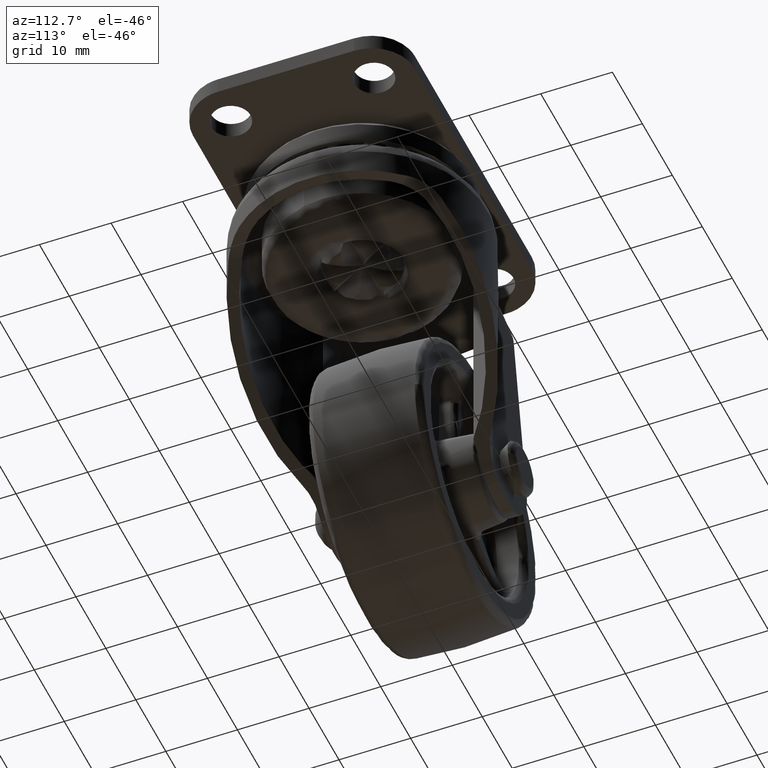
[diagram: clean part render]
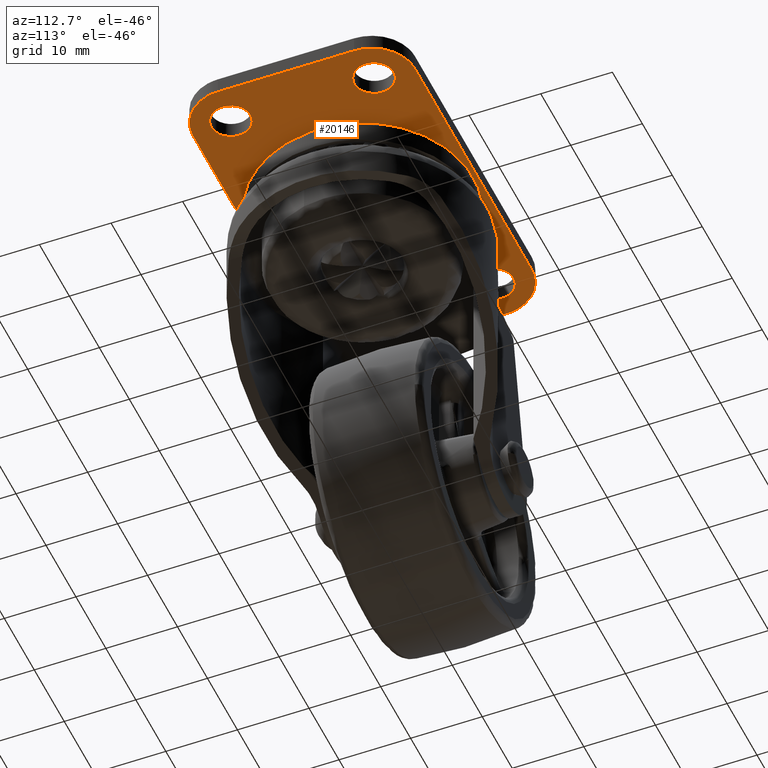
[diagram: same view with one face highlighted and labeled with its STEP entity id]
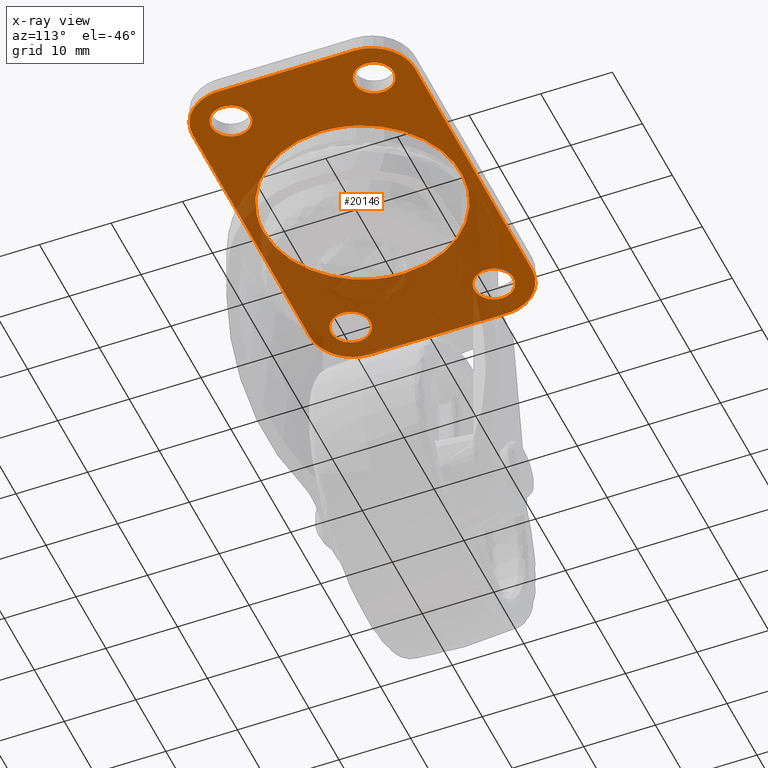
[diagram: x-ray of the same camera — body ghosted, the highlighted face saturated]
A machine part, auxiliary view. The second image highlights one B-rep face of the part: STEP entity #20146.
The next image is the same camera in x-ray: the body ghosted, the highlighted face saturated — about 45% of this face is hidden behind the body in this view.
In plain terms, the highlighted face is a freeform B-spline surface patch.
Its self-contained STEP definition (entity closure, byte-faithful):
#16267=CARTESIAN_POINT('',(-2.750000000000001,9.999999999999890,35.700001000000050));
#16268=VERTEX_POINT('',#16267);
#16269=CARTESIAN_POINT('',(-0.215762513361865,7.258477332242467,35.700001000000050));
#16270=VERTEX_POINT('',#16269);
#16271=CARTESIAN_POINT('',(-2.750000000000001,9.999999999999890,35.700001000000050));
#16272=CARTESIAN_POINT('',(-2.750000000000001,7.457926148144983,35.700001000000057));
#16273=CARTESIAN_POINT('',(-0.215762513361865,7.258477332242467,35.700001000000050));
#16281=(BOUNDED_CURVE()B_SPLINE_CURVE(2,(#16271,#16272,#16273),.UNSPECIFIED.,.F.,.U.)B_SPLINE_CURVE_WITH_KNOTS((3,3),(0.0,0.236331300618974),.UNSPECIFIED.)CURVE()GEOMETRIC_REPRESENTATION_ITEM()RATIONAL_B_SPLINE_CURVE((1.0,0.723120658621356,0.969723356143031))REPRESENTATION_ITEM(''));
#16282=EDGE_CURVE('',#16268,#16270,#16281,.T.);
#16284=CARTESIAN_POINT('',(0.215762513361863,12.741522667757311,35.700001000000043));
#16285=VERTEX_POINT('',#16284);
#16286=CARTESIAN_POINT('',(0.215762513361862,12.741522667757311,35.700001000000050));
#16287=CARTESIAN_POINT('',(0.108047794381891,12.749999999999892,35.700001000000050));
#16288=CARTESIAN_POINT('',(-1.224606E-015,12.749999999999890,35.700001000000050));
#16289=CARTESIAN_POINT('',(-2.750000000000002,12.749999999999892,35.700001000000043));
#16290=CARTESIAN_POINT('',(-2.750000000000001,9.999999999999890,35.700001000000050));
#16298=(BOUNDED_CURVE()B_SPLINE_CURVE(2,(#16286,#16287,#16288,#16289,#16290),.UNSPECIFIED.,.F.,.U.)B_SPLINE_CURVE_WITH_KNOTS((3,2,3),(0.736331300618974,0.750000000000000,1.0),.UNSPECIFIED.)CURVE()GEOMETRIC_REPRESENTATION_ITEM()RATIONAL_B_SPLINE_CURVE((0.969723356143031,0.983986122565192,1.0,0.707106781186548,1.0))REPRESENTATION_ITEM(''));
#16299=EDGE_CURVE('',#16285,#16268,#16298,.T.);
#16366=CARTESIAN_POINT('',(2.749999999999999,9.999999999999890,35.700001000000050));
#16367=VERTEX_POINT('',#16366);
#16368=CARTESIAN_POINT('',(-0.215762513361865,7.258477332242467,35.700001000000050));
#16369=CARTESIAN_POINT('',(-0.108047794381894,7.249999999999890,35.700001000000050));
#16370=CARTESIAN_POINT('',(-1.224606E-015,7.249999999999889,35.700001000000050));
#16371=CARTESIAN_POINT('',(2.749999999999999,7.249999999999888,35.700001000000043));
#16372=CARTESIAN_POINT('',(2.749999999999999,9.999999999999890,35.700001000000050));
#16380=(BOUNDED_CURVE()B_SPLINE_CURVE(2,(#16368,#16369,#16370,#16371,#16372),.UNSPECIFIED.,.F.,.U.)B_SPLINE_CURVE_WITH_KNOTS((3,2,3),(0.236331300618974,0.250000000000000,0.500000000000000),.UNSPECIFIED.)CURVE()GEOMETRIC_REPRESENTATION_ITEM()RATIONAL_B_SPLINE_CURVE((0.969723356143031,0.983986122565192,1.0,0.707106781186548,1.0))REPRESENTATION_ITEM(''));
#16381=EDGE_CURVE('',#16270,#16367,#16380,.T.);
#16415=CARTESIAN_POINT('',(2.749999999999999,9.999999999999890,35.700001000000050));
#16416=CARTESIAN_POINT('',(2.749999999999999,12.542073851854806,35.700001000000050));
#16417=CARTESIAN_POINT('',(0.215762513361862,12.741522667757314,35.700001000000050));
#16425=(BOUNDED_CURVE()B_SPLINE_CURVE(2,(#16415,#16416,#16417),.UNSPECIFIED.,.F.,.U.)B_SPLINE_CURVE_WITH_KNOTS((3,3),(0.500000000000000,0.736331300618975),.UNSPECIFIED.)CURVE()GEOMETRIC_REPRESENTATION_ITEM()RATIONAL_B_SPLINE_CURVE((1.0,0.723120658621355,0.969723356143033))REPRESENTATION_ITEM(''));
#16426=EDGE_CURVE('',#16367,#16285,#16425,.T.);
#16449=CARTESIAN_POINT('',(37.250000000000000,9.999999999999890,35.700001000000050));
#16450=VERTEX_POINT('',#16449);
#16451=CARTESIAN_POINT('',(39.784237486638133,7.258477332242467,35.700001000000043));
#16452=VERTEX_POINT('',#16451);
#16453=CARTESIAN_POINT('',(37.250000000000000,9.999999999999890,35.700001000000050));
#16454=CARTESIAN_POINT('',(37.249999999999993,7.457926148144983,35.700001000000043));
#16455=CARTESIAN_POINT('',(39.784237486638141,7.258477332242467,35.700001000000043));
#16463=(BOUNDED_CURVE()B_SPLINE_CURVE(2,(#16453,#16454,#16455),.UNSPECIFIED.,.F.,.U.)B_SPLINE_CURVE_WITH_KNOTS((3,3),(0.0,0.236331300618974),.UNSPECIFIED.)CURVE()GEOMETRIC_REPRESENTATION_ITEM()RATIONAL_B_SPLINE_CURVE((1.0,0.723120658621356,0.969723356143032))REPRESENTATION_ITEM(''));
#16464=EDGE_CURVE('',#16450,#16452,#16463,.T.);
#16466=CARTESIAN_POINT('',(40.215762513361867,12.741522667757311,35.700001000000043));
#16467=VERTEX_POINT('',#16466);
#16468=CARTESIAN_POINT('',(40.215762513361874,12.741522667757316,35.700001000000043));
#16469=CARTESIAN_POINT('',(40.108047794381889,12.749999999999886,35.700001000000064));
#16470=CARTESIAN_POINT('',(40.0,12.749999999999890,35.700001000000050));
#16471=CARTESIAN_POINT('',(37.250000000000000,12.749999999999892,35.700001000000043));
#16472=CARTESIAN_POINT('',(37.250000000000000,9.999999999999890,35.700001000000050));
#16480=(BOUNDED_CURVE()B_SPLINE_CURVE(2,(#16468,#16469,#16470,#16471,#16472),.UNSPECIFIED.,.F.,.U.)B_SPLINE_CURVE_WITH_KNOTS((3,2,3),(0.736331300618974,0.750000000000000,1.0),.UNSPECIFIED.)CURVE()GEOMETRIC_REPRESENTATION_ITEM()RATIONAL_B_SPLINE_CURVE((0.969723356143031,0.983986122565192,1.0,0.707106781186548,1.0))REPRESENTATION_ITEM(''));
#16481=EDGE_CURVE('',#16467,#16450,#16480,.T.);
#16548=CARTESIAN_POINT('',(42.750000000000000,9.999999999999890,35.700001000000050));
#16549=VERTEX_POINT('',#16548);
#16550=CARTESIAN_POINT('',(39.784237486638141,7.258477332242467,35.700001000000043));
#16551=CARTESIAN_POINT('',(39.891952205618118,7.249999999999890,35.700001000000050));
#16552=CARTESIAN_POINT('',(40.0,7.249999999999889,35.700001000000050));
#16553=CARTESIAN_POINT('',(42.750000000000000,7.249999999999888,35.700001000000043));
#16554=CARTESIAN_POINT('',(42.750000000000000,9.999999999999890,35.700001000000050));
#16562=(BOUNDED_CURVE()B_SPLINE_CURVE(2,(#16550,#16551,#16552,#16553,#16554),.UNSPECIFIED.,.F.,.U.)B_SPLINE_CURVE_WITH_KNOTS((3,2,3),(0.236331300618974,0.250000000000000,0.500000000000000),.UNSPECIFIED.)CURVE()GEOMETRIC_REPRESENTATION_ITEM()RATIONAL_B_SPLINE_CURVE((0.969723356143032,0.983986122565192,1.0,0.707106781186548,1.0))REPRESENTATION_ITEM(''));
#16563=EDGE_CURVE('',#16452,#16549,#16562,.T.);
#16597=CARTESIAN_POINT('',(42.750000000000000,9.999999999999890,35.700001000000050));
#16598=CARTESIAN_POINT('',(42.750000000000000,12.542073851854806,35.700001000000050));
#16599=CARTESIAN_POINT('',(40.215762513361867,12.741522667757314,35.700001000000050));
#16607=(BOUNDED_CURVE()B_SPLINE_CURVE(2,(#16597,#16598,#16599),.UNSPECIFIED.,.F.,.U.)B_SPLINE_CURVE_WITH_KNOTS((3,3),(0.500000000000000,0.736331300618975),.UNSPECIFIED.)CURVE()GEOMETRIC_REPRESENTATION_ITEM()RATIONAL_B_SPLINE_CURVE((1.0,0.723120658621355,0.969723356143033))REPRESENTATION_ITEM(''));
#16608=EDGE_CURVE('',#16549,#16467,#16607,.T.);
#16631=CARTESIAN_POINT('',(-2.749999999999999,-10.0,35.700001000000050));
#16632=VERTEX_POINT('',#16631);
#16633=CARTESIAN_POINT('',(-0.215762513361863,-12.741522667757421,35.700001000000050));
#16634=VERTEX_POINT('',#16633);
#16635=CARTESIAN_POINT('',(-2.749999999999999,-10.0,35.700001000000050));
#16636=CARTESIAN_POINT('',(-2.750000000000000,-12.542073851854907,35.700001000000057));
#16637=CARTESIAN_POINT('',(-0.215762513361863,-12.741522667757422,35.700001000000050));
#16645=(BOUNDED_CURVE()B_SPLINE_CURVE(2,(#16635,#16636,#16637),.UNSPECIFIED.,.F.,.U.)B_SPLINE_CURVE_WITH_KNOTS((3,3),(0.0,0.236331300618974),.UNSPECIFIED.)CURVE()GEOMETRIC_REPRESENTATION_ITEM()RATIONAL_B_SPLINE_CURVE((1.0,0.723120658621356,0.969723356143031))REPRESENTATION_ITEM(''));
#16646=EDGE_CURVE('',#16632,#16634,#16645,.T.);
#16648=CARTESIAN_POINT('',(0.215762513361865,-7.258477332242578,35.700001000000043));
#16649=VERTEX_POINT('',#16648);
#16650=CARTESIAN_POINT('',(0.215762513361865,-7.258477332242578,35.700001000000050));
#16651=CARTESIAN_POINT('',(0.108047794381894,-7.250000000000000,35.700001000000050));
#16652=CARTESIAN_POINT('',(1.224606E-015,-7.250000000000000,35.700001000000050));
#16653=CARTESIAN_POINT('',(-2.749999999999999,-7.250000000000000,35.700001000000043));
#16654=CARTESIAN_POINT('',(-2.749999999999999,-10.0,35.700001000000050));
#16662=(BOUNDED_CURVE()B_SPLINE_CURVE(2,(#16650,#16651,#16652,#16653,#16654),.UNSPECIFIED.,.F.,.U.)B_SPLINE_CURVE_WITH_KNOTS((3,2,3),(0.736331300618974,0.750000000000000,1.0),.UNSPECIFIED.)CURVE()GEOMETRIC_REPRESENTATION_ITEM()RATIONAL_B_SPLINE_CURVE((0.969723356143031,0.983986122565192,1.0,0.707106781186548,1.0))REPRESENTATION_ITEM(''));
#16663=EDGE_CURVE('',#16649,#16632,#16662,.T.);
#16730=CARTESIAN_POINT('',(2.750000000000001,-10.0,35.700001000000050));
#16731=VERTEX_POINT('',#16730);
#16732=CARTESIAN_POINT('',(-0.215762513361863,-12.741522667757426,35.700001000000057));
#16733=CARTESIAN_POINT('',(-0.108047794381892,-12.750000000000005,35.700001000000057));
#16734=CARTESIAN_POINT('',(1.224606E-015,-12.750000000000000,35.700001000000050));
#16735=CARTESIAN_POINT('',(2.750000000000002,-12.750000000000002,35.700001000000043));
#16736=CARTESIAN_POINT('',(2.750000000000001,-10.0,35.700001000000050));
#16744=(BOUNDED_CURVE()B_SPLINE_CURVE(2,(#16732,#16733,#16734,#16735,#16736),.UNSPECIFIED.,.F.,.U.)B_SPLINE_CURVE_WITH_KNOTS((3,2,3),(0.236331300618974,0.250000000000000,0.500000000000000),.UNSPECIFIED.)CURVE()GEOMETRIC_REPRESENTATION_ITEM()RATIONAL_B_SPLINE_CURVE((0.969723356143031,0.983986122565192,1.0,0.707106781186548,1.0))REPRESENTATION_ITEM(''));
#16745=EDGE_CURVE('',#16634,#16731,#16744,.T.);
#16779=CARTESIAN_POINT('',(2.750000000000001,-10.0,35.700001000000050));
#16780=CARTESIAN_POINT('',(2.750000000000002,-7.457926148145087,35.700001000000050));
#16781=CARTESIAN_POINT('',(0.215762513361865,-7.258477332242578,35.700001000000050));
#16789=(BOUNDED_CURVE()B_SPLINE_CURVE(2,(#16779,#16780,#16781),.UNSPECIFIED.,.F.,.U.)B_SPLINE_CURVE_WITH_KNOTS((3,3),(0.500000000000000,0.736331300618975),.UNSPECIFIED.)CURVE()GEOMETRIC_REPRESENTATION_ITEM()RATIONAL_B_SPLINE_CURVE((1.0,0.723120658621355,0.969723356143033))REPRESENTATION_ITEM(''));
#16790=EDGE_CURVE('',#16731,#16649,#16789,.T.);
#16813=CARTESIAN_POINT('',(37.250000000000000,-10.0,35.700001000000050));
#16814=VERTEX_POINT('',#16813);
#16815=CARTESIAN_POINT('',(39.784237486638133,-12.741522667757421,35.700001000000043));
#16816=VERTEX_POINT('',#16815);
#16817=CARTESIAN_POINT('',(37.250000000000000,-10.0,35.700001000000050));
#16818=CARTESIAN_POINT('',(37.249999999999993,-12.542073851854907,35.700001000000057));
#16819=CARTESIAN_POINT('',(39.784237486638133,-12.741522667757422,35.700001000000050));
#16827=(BOUNDED_CURVE()B_SPLINE_CURVE(2,(#16817,#16818,#16819),.UNSPECIFIED.,.F.,.U.)B_SPLINE_CURVE_WITH_KNOTS((3,3),(0.0,0.236331300618974),.UNSPECIFIED.)CURVE()GEOMETRIC_REPRESENTATION_ITEM()RATIONAL_B_SPLINE_CURVE((1.0,0.723120658621356,0.969723356143031))REPRESENTATION_ITEM(''));
#16828=EDGE_CURVE('',#16814,#16816,#16827,.T.);
#16830=CARTESIAN_POINT('',(40.215762513361867,-7.258477332242579,35.700001000000043));
#16831=VERTEX_POINT('',#16830);
#16832=CARTESIAN_POINT('',(40.215762513361874,-7.258477332242579,35.700001000000043));
#16833=CARTESIAN_POINT('',(40.108047794381889,-7.250000000000000,35.700001000000064));
#16834=CARTESIAN_POINT('',(40.0,-7.250000000000000,35.700001000000050));
#16835=CARTESIAN_POINT('',(37.250000000000000,-7.250000000000000,35.700001000000043));
#16836=CARTESIAN_POINT('',(37.250000000000000,-10.0,35.700001000000050));
#16844=(BOUNDED_CURVE()B_SPLINE_CURVE(2,(#16832,#16833,#16834,#16835,#16836),.UNSPECIFIED.,.F.,.U.)B_SPLINE_CURVE_WITH_KNOTS((3,2,3),(0.736331300618974,0.750000000000000,1.0),.UNSPECIFIED.)CURVE()GEOMETRIC_REPRESENTATION_ITEM()RATIONAL_B_SPLINE_CURVE((0.969723356143031,0.983986122565192,1.0,0.707106781186548,1.0))REPRESENTATION_ITEM(''));
#16845=EDGE_CURVE('',#16831,#16814,#16844,.T.);
#16912=CARTESIAN_POINT('',(42.750000000000000,-10.0,35.700001000000050));
#16913=VERTEX_POINT('',#16912);
#16914=CARTESIAN_POINT('',(39.784237486638133,-12.741522667757422,35.700001000000050));
#16915=CARTESIAN_POINT('',(39.891952205618118,-12.750000000000004,35.700001000000050));
#16916=CARTESIAN_POINT('',(40.0,-12.750000000000000,35.700001000000050));
#16917=CARTESIAN_POINT('',(42.750000000000000,-12.750000000000002,35.700001000000043));
#16918=CARTESIAN_POINT('',(42.750000000000000,-10.0,35.700001000000050));
#16926=(BOUNDED_CURVE()B_SPLINE_CURVE(2,(#16914,#16915,#16916,#16917,#16918),.UNSPECIFIED.,.F.,.U.)B_SPLINE_CURVE_WITH_KNOTS((3,2,3),(0.236331300618974,0.250000000000000,0.500000000000000),.UNSPECIFIED.)CURVE()GEOMETRIC_REPRESENTATION_ITEM()RATIONAL_B_SPLINE_CURVE((0.969723356143031,0.983986122565192,1.0,0.707106781186548,1.0))REPRESENTATION_ITEM(''));
#16927=EDGE_CURVE('',#16816,#16913,#16926,.T.);
#16961=CARTESIAN_POINT('',(42.750000000000000,-10.0,35.700001000000050));
#16962=CARTESIAN_POINT('',(42.750000000000000,-7.457926148145087,35.700001000000050));
#16963=CARTESIAN_POINT('',(40.215762513361867,-7.258477332242579,35.700001000000050));
#16971=(BOUNDED_CURVE()B_SPLINE_CURVE(2,(#16961,#16962,#16963),.UNSPECIFIED.,.F.,.U.)B_SPLINE_CURVE_WITH_KNOTS((3,3),(0.500000000000000,0.736331300618975),.UNSPECIFIED.)CURVE()GEOMETRIC_REPRESENTATION_ITEM()RATIONAL_B_SPLINE_CURVE((1.0,0.723120658621355,0.969723356143033))REPRESENTATION_ITEM(''));
#16972=EDGE_CURVE('',#16913,#16831,#16971,.T.);
#18009=CARTESIAN_POINT('',(20.310580514905791,-13.796504702041140,35.700000999568822));
#18010=VERTEX_POINT('',#18009);
#18024=CARTESIAN_POINT('',(6.199999919853781,0.0,35.700001000000000));
#18025=VERTEX_POINT('',#18024);
#18026=CARTESIAN_POINT('',(20.310580514905791,-13.796504702041140,35.700000999568822));
#18027=CARTESIAN_POINT('',(20.155309926730656,-13.800000080146223,35.700001000000007));
#18028=CARTESIAN_POINT('',(20.0,-13.800000080146219,35.700001000000000));
#18029=CARTESIAN_POINT('',(6.199999919853781,-13.800000080146221,35.700001000000007));
#18030=CARTESIAN_POINT('',(6.199999919853781,0.0,35.700001000000000));
#18038=(BOUNDED_CURVE()B_SPLINE_CURVE(2,(#18026,#18027,#18028,#18029,#18030),.UNSPECIFIED.,.F.,.U.)B_SPLINE_CURVE_WITH_KNOTS((3,2,3),(0.746039451959293,0.750000000000000,1.0),.UNSPECIFIED.)CURVE()GEOMETRIC_REPRESENTATION_ITEM()RATIONAL_B_SPLINE_CURVE((0.990866876470688,0.995359929344368,1.0,0.707106781186547,1.0))REPRESENTATION_ITEM(''));
#18039=EDGE_CURVE('',#18010,#18025,#18038,.T.);
#18041=CARTESIAN_POINT('',(33.668367755222498,1.901506022957159,35.700000999595552));
#18042=VERTEX_POINT('',#18041);
#18043=CARTESIAN_POINT('',(6.199999919853781,0.0,35.700001000000000));
#18044=CARTESIAN_POINT('',(6.199999919853781,13.800000080146221,35.700001000000007));
#18045=CARTESIAN_POINT('',(20.0,13.800000080146219,35.700001000000000));
#18046=CARTESIAN_POINT('',(32.013081729838255,13.800000080146219,35.700000999999993));
#18047=CARTESIAN_POINT('',(33.668367755222498,1.901506022957159,35.700000999595552));
#18055=(BOUNDED_CURVE()B_SPLINE_CURVE(2,(#18043,#18044,#18045,#18046,#18047),.UNSPECIFIED.,.F.,.U.)B_SPLINE_CURVE_WITH_KNOTS((3,2,3),(0.0,0.250000000000000,0.476207390885883),.UNSPECIFIED.)CURVE()GEOMETRIC_REPRESENTATION_ITEM()RATIONAL_B_SPLINE_CURVE((1.0,0.707106781186547,1.0,0.734981556656163,0.949556158155907))REPRESENTATION_ITEM(''));
#18056=EDGE_CURVE('',#18025,#18042,#18055,.T.);
#18103=CARTESIAN_POINT('',(33.800000080146219,0.0,35.700001000000000));
#18104=VERTEX_POINT('',#18103);
#18105=CARTESIAN_POINT('',(33.668367755222498,1.901506022957159,35.700000999595552));
#18106=CARTESIAN_POINT('',(33.800000080146219,0.955309155217818,35.700001000000007));
#18107=CARTESIAN_POINT('',(33.800000080146219,0.0,35.700001000000000));
#18115=(BOUNDED_CURVE()B_SPLINE_CURVE(2,(#18105,#18106,#18107),.UNSPECIFIED.,.F.,.U.)B_SPLINE_CURVE_WITH_KNOTS((3,3),(0.476207390885883,0.500000000000000),.UNSPECIFIED.)CURVE()GEOMETRIC_REPRESENTATION_ITEM()RATIONAL_B_SPLINE_CURVE((0.949556158155907,0.972125224530384,1.0))REPRESENTATION_ITEM(''));
#18116=EDGE_CURVE('',#18042,#18104,#18115,.T.);
#18118=CARTESIAN_POINT('',(33.800000080146219,0.0,35.700001000000000));
#18119=CARTESIAN_POINT('',(33.800000080146219,-13.492837143561525,35.700000999999993));
#18120=CARTESIAN_POINT('',(20.310580514905787,-13.796504702041146,35.700000999568815));
#18128=(BOUNDED_CURVE()B_SPLINE_CURVE(2,(#18118,#18119,#18120),.UNSPECIFIED.,.F.,.U.)B_SPLINE_CURVE_WITH_KNOTS((3,3),(0.500000000000000,0.746039451959292),.UNSPECIFIED.)CURVE()GEOMETRIC_REPRESENTATION_ITEM()RATIONAL_B_SPLINE_CURVE((1.0,0.711746851842180,0.990866876470686))REPRESENTATION_ITEM(''));
#18129=EDGE_CURVE('',#18104,#18010,#18128,.T.);
#19787=CARTESIAN_POINT('',(-5.500000000000000,-9.500000000000000,35.700001000000050));
#19788=VERTEX_POINT('',#19787);
#19789=CARTESIAN_POINT('',(0.500003141592645,-15.499999999999201,35.700001000000050));
#19790=VERTEX_POINT('',#19789);
#19791=CARTESIAN_POINT('',(-5.500000000000000,-9.500000000000000,35.700001000000050));
#19792=CARTESIAN_POINT('',(-5.500000000000001,-11.985282294389798,35.700001000000050));
#19793=CARTESIAN_POINT('',(-3.742639576398409,-13.742641797839870,35.700001000000050));
#19794=CARTESIAN_POINT('',(-1.985279152796817,-15.500001301289936,35.700001000000050));
#19795=CARTESIAN_POINT('',(0.500003141592644,-15.499999999999179,35.700001000000050));
#19803=(BOUNDED_CURVE()B_SPLINE_CURVE(2,(#19791,#19792,#19793,#19794,#19795),.UNSPECIFIED.,.F.,.U.)B_SPLINE_CURVE_WITH_KNOTS((3,2,3),(0.0,0.500000000000000,1.0),.UNSPECIFIED.)CURVE()GEOMETRIC_REPRESENTATION_ITEM()RATIONAL_B_SPLINE_CURVE((1.0,0.923879482418135,1.0,0.923879482418135,1.0))REPRESENTATION_ITEM(''));
#19804=EDGE_CURVE('',#19788,#19790,#19803,.T.);
#19843=CARTESIAN_POINT('',(-5.499999999998540,9.500004188790211,35.700001000000050));
#19844=VERTEX_POINT('',#19843);
#19845=CARTESIAN_POINT('',(-5.499999999998540,9.500004188790211,35.700001000000050));
#19846=CARTESIAN_POINT('',(-5.500000000000000,-9.500000000000000,35.700001000000050));
#19847=QUASI_UNIFORM_CURVE('',1,(#19845,#19846),.UNSPECIFIED.,.F.,.U.);
#19848=EDGE_CURVE('',#19844,#19788,#19847,.T.);
#19880=CARTESIAN_POINT('',(0.500000000000000,15.500000000000000,35.700001000000050));
#19881=VERTEX_POINT('',#19880);
#19882=CARTESIAN_POINT('',(0.500000000000000,15.500000000000000,35.700001000000050));
#19883=CARTESIAN_POINT('',(-5.499995811211249,15.500000000000004,35.700001000000050));
#19884=CARTESIAN_POINT('',(-5.499999999998537,9.500004188790213,35.700001000000050));
#19892=(BOUNDED_CURVE()B_SPLINE_CURVE(2,(#19882,#19883,#19884),.UNSPECIFIED.,.F.,.U.)CURVE()GEOMETRIC_REPRESENTATION_ITEM()QUASI_UNIFORM_CURVE()RATIONAL_B_SPLINE_CURVE((1.0,0.707107028013335,1.0))REPRESENTATION_ITEM(''));
#19893=EDGE_CURVE('',#19881,#19844,#19892,.T.);
#19924=CARTESIAN_POINT('',(39.500001884955587,15.499999999999700,35.700001000000050));
#19925=VERTEX_POINT('',#19924);
#19926=CARTESIAN_POINT('',(39.500001884955587,15.499999999999700,35.700001000000050));
#19927=CARTESIAN_POINT('',(0.500000000000000,15.500000000000000,35.700001000000050));
#19928=QUASI_UNIFORM_CURVE('',1,(#19926,#19927),.UNSPECIFIED.,.F.,.U.);
#19929=EDGE_CURVE('',#19925,#19881,#19928,.T.);
#19961=CARTESIAN_POINT('',(45.500000000000000,9.500000000000000,35.700001000000050));
#19962=VERTEX_POINT('',#19961);
#19963=CARTESIAN_POINT('',(45.500000000000000,9.500000000000000,35.700001000000050));
#19964=CARTESIAN_POINT('',(45.500000000000007,15.499998115044702,35.700001000000043));
#19965=CARTESIAN_POINT('',(39.500001884955587,15.499999999999710,35.700001000000050));
#19973=(BOUNDED_CURVE()B_SPLINE_CURVE(2,(#19963,#19964,#19965),.UNSPECIFIED.,.F.,.U.)CURVE()GEOMETRIC_REPRESENTATION_ITEM()QUASI_UNIFORM_CURVE()RATIONAL_B_SPLINE_CURVE((1.0,0.707106892258612,1.0))REPRESENTATION_ITEM(''));
#19974=EDGE_CURVE('',#19962,#19925,#19973,.T.);
#20005=CARTESIAN_POINT('',(45.500000000000000,-9.500000000000000,35.700001000000050));
#20006=VERTEX_POINT('',#20005);
#20007=CARTESIAN_POINT('',(45.500000000000000,-9.500000000000000,35.700001000000050));
#20008=CARTESIAN_POINT('',(45.500000000000000,9.500000000000000,35.700001000000050));
#20009=QUASI_UNIFORM_CURVE('',1,(#20007,#20008),.UNSPECIFIED.,.F.,.U.);
#20010=EDGE_CURVE('',#20006,#19962,#20009,.T.);
#20042=CARTESIAN_POINT('',(39.500002094395100,-15.499999999999650,35.700001000000050));
#20043=VERTEX_POINT('',#20042);
#20044=CARTESIAN_POINT('',(39.500002094395100,-15.499999999999631,35.700001000000050));
#20045=CARTESIAN_POINT('',(45.500000000000000,-15.499997905605262,35.700001000000050));
#20046=CARTESIAN_POINT('',(45.500000000000000,-9.500000000000000,35.700001000000050));
#20054=(BOUNDED_CURVE()B_SPLINE_CURVE(2,(#20044,#20045,#20046),.UNSPECIFIED.,.F.,.U.)CURVE()GEOMETRIC_REPRESENTATION_ITEM()QUASI_UNIFORM_CURVE()RATIONAL_B_SPLINE_CURVE((1.0,0.707106904599952,1.0))REPRESENTATION_ITEM(''));
#20055=EDGE_CURVE('',#20043,#20006,#20054,.T.);
#20086=CARTESIAN_POINT('',(0.500003141592645,-15.499999999999201,35.700001000000050));
#20087=CARTESIAN_POINT('',(39.500002094395100,-15.499999999999650,35.700001000000050));
#20088=QUASI_UNIFORM_CURVE('',1,(#20086,#20087),.UNSPECIFIED.,.F.,.U.);
#20089=EDGE_CURVE('',#19790,#20043,#20088,.T.);
#20101=CARTESIAN_POINT('',(-8.047449901152103,17.048449939915969,35.700001000000000));
#20102=CARTESIAN_POINT('',(48.047451269078699,17.048449939915969,35.700001000000000));
#20103=CARTESIAN_POINT('',(-8.047449901152103,-17.048450771400422,35.700001000000000));
#20104=CARTESIAN_POINT('',(48.047451269078699,-17.048450771400422,35.700001000000000));
#20105=B_SPLINE_SURFACE_WITH_KNOTS('',1,1,((#20101,#20103),(#20102,#20104)),.UNSPECIFIED.,.F.,.F.,.U.,(2,2),(2,2),(0.0,56.094901170230798),(0.0,34.096900711316380),.UNSPECIFIED.);
#20106=ORIENTED_EDGE('',*,*,#20089,.F.);
#20107=ORIENTED_EDGE('',*,*,#19804,.F.);
#20108=ORIENTED_EDGE('',*,*,#19848,.F.);
#20109=ORIENTED_EDGE('',*,*,#19893,.F.);
#20110=ORIENTED_EDGE('',*,*,#19929,.F.);
#20111=ORIENTED_EDGE('',*,*,#19974,.F.);
#20112=ORIENTED_EDGE('',*,*,#20010,.F.);
#20113=ORIENTED_EDGE('',*,*,#20055,.F.);
#20114=EDGE_LOOP('',(#20106,#20107,#20108,#20109,#20110,#20111,#20112,#20113));
#20115=FACE_OUTER_BOUND('',#20114,.T.);
#20116=ORIENTED_EDGE('',*,*,#18056,.F.);
#20117=ORIENTED_EDGE('',*,*,#18039,.F.);
#20118=ORIENTED_EDGE('',*,*,#18129,.F.);
#20119=ORIENTED_EDGE('',*,*,#18116,.F.);
#20120=EDGE_LOOP('',(#20116,#20117,#20118,#20119));
#20121=FACE_BOUND('',#20120,.T.);
#20122=ORIENTED_EDGE('',*,*,#16972,.T.);
#20123=ORIENTED_EDGE('',*,*,#16845,.T.);
#20124=ORIENTED_EDGE('',*,*,#16828,.T.);
#20125=ORIENTED_EDGE('',*,*,#16927,.T.);
#20126=EDGE_LOOP('',(#20122,#20123,#20124,#20125));
#20127=FACE_BOUND('',#20126,.T.);
#20128=ORIENTED_EDGE('',*,*,#16790,.T.);
#20129=ORIENTED_EDGE('',*,*,#16663,.T.);
#20130=ORIENTED_EDGE('',*,*,#16646,.T.);
#20131=ORIENTED_EDGE('',*,*,#16745,.T.);
#20132=EDGE_LOOP('',(#20128,#20129,#20130,#20131));
#20133=FACE_BOUND('',#20132,.T.);
#20134=ORIENTED_EDGE('',*,*,#16608,.T.);
#20135=ORIENTED_EDGE('',*,*,#16481,.T.);
#20136=ORIENTED_EDGE('',*,*,#16464,.T.);
#20137=ORIENTED_EDGE('',*,*,#16563,.T.);
#20138=EDGE_LOOP('',(#20134,#20135,#20136,#20137));
#20139=FACE_BOUND('',#20138,.T.);
#20140=ORIENTED_EDGE('',*,*,#16426,.T.);
#20141=ORIENTED_EDGE('',*,*,#16299,.T.);
#20142=ORIENTED_EDGE('',*,*,#16282,.T.);
#20143=ORIENTED_EDGE('',*,*,#16381,.T.);
#20144=EDGE_LOOP('',(#20140,#20141,#20142,#20143));
#20145=FACE_BOUND('',#20144,.T.);
#20146=ADVANCED_FACE('',(#20115,#20121,#20127,#20133,#20139,#20145),#20105,.T.);